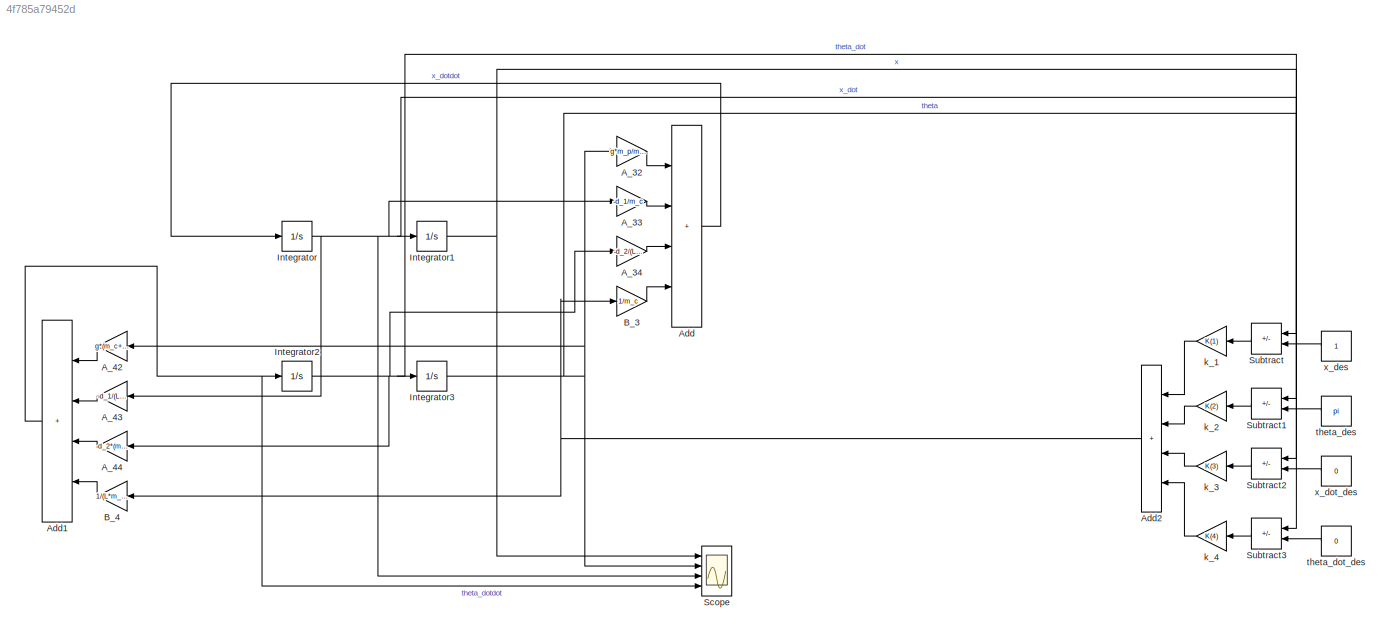
MODEL slx_4f785a79452d
KIND model
CONFIG AbsTol = auto
CONFIG EnableMultiTasking = off
CONFIG FixedStep = auto
CONFIG MaxStep = auto
CONFIG MinStep = auto
CONFIG RelTol = 1e-3
CONFIG SampleTimeConstraint = Unconstrained
CONFIG SolverName = VariableStepAuto
CONFIG StartTime = 0.0
CONFIG StopTime = 6
BLOCK [Gain] A_32
  Gain = g*m_p/m_c
BLOCK [Gain] A_33
  Gain = -d_1/m_c
BLOCK [Gain] A_34
  Gain = -d_2/(L*m_c)
BLOCK [Gain] A_42
  Gain = g*(m_c+m_p)/(m_c*L)
BLOCK [Gain] A_43
  Gain = -d_1/(L*m_c)
BLOCK [Gain] A_44
  Gain = -d_2*(m_c+m_p)/(L*L*m_c*m_p)
BLOCK [Sum] Add
  IconShape = rectangular
  Inputs = ++++
  Ports = [4, 1]
BLOCK [Sum] Add1
  IconShape = rectangular
  Inputs = ++++
  Ports = [4, 1]
BLOCK [Sum] Add2
  IconShape = rectangular
  Inputs = ++++
  Ports = [4, 1]
BLOCK [Gain] B_3
  Gain = 1/m_c
BLOCK [Gain] B_4
  Gain = 1/(L*m_c)
BLOCK [Integrator] Integrator
  InitialCondition = 1
  Ports = [1, 1]
BLOCK [Integrator] Integrator1
  InitialCondition = -1
  Ports = [1, 1]
BLOCK [Integrator] Integrator2
  Ports = [1, 1]
BLOCK [Integrator] Integrator3
  InitialCondition = pi+0.1
  Ports = [1, 1]
BLOCK [Scope] Scope
  Floating = off
  NumInputPorts = 4
  Ports = [4]
  ScopeSpecificationString = Simulink.scopes.TimeScopeBlockCfg('CurrentConfiguration', extmgr.ConfigurationSet(extmgr.Configuration('Core','General UI',true),extmgr.Configuration('Core','Source UI',true),extmgr.Configuration('Sources','WiredSimulink',true),extmgr.Configuration('Visuals','Time Domain',true,'SerializedDisplays',{struct('MinYLimReal','-31142339904539866997879520696096774568093672594581264022391383986240401027766...<+3594ch>
BLOCK [Sum] Subtract
  IconShape = rectangular
  Inputs = +-
  Ports = [2, 1]
BLOCK [Sum] Subtract1
  IconShape = rectangular
  Inputs = +-
  Ports = [2, 1]
BLOCK [Sum] Subtract2
  IconShape = rectangular
  Inputs = +-
  Ports = [2, 1]
BLOCK [Sum] Subtract3
  IconShape = rectangular
  Inputs = +-
  Ports = [2, 1]
BLOCK [Gain] k_1
  Gain = K(1)
BLOCK [Gain] k_2
  Gain = K(2)
BLOCK [Gain] k_3
  Gain = K(3)
BLOCK [Gain] k_4
  Gain = K(4)
BLOCK [Constant] theta_des
  Value = pi
BLOCK [Constant] theta_dot_des
  Value = 0
BLOCK [Constant] x_des
BLOCK [Constant] x_dot_des
  Value = 0
LINE A_32:1 -> Add:1
LINE A_33:1 -> Add:2
LINE A_34:1 -> Add:3
LINE A_42:1 -> Add1:1
LINE A_43:1 -> Add1:2
LINE A_44:1 -> Add1:3
NET Add1:1 -> Integrator2:1, Scope:4
NET Add2:1 -> B_3:1, B_4:1
LINE Add:1 -> Integrator:1
LINE B_3:1 -> Add:4
LINE B_4:1 -> Add1:4
NET Integrator1:1 -> Scope:1, Subtract:1
NET Integrator2:1 -> A_34:1, A_44:1, Integrator3:1, Subtract3:1
NET Integrator3:1 -> A_32:1, A_42:1, Scope:2, Subtract1:1
NET Integrator:1 -> A_33:1, A_43:1, Integrator1:1, Scope:3, Subtract2:1
LINE Subtract1:1 -> k_2:1
LINE Subtract2:1 -> k_3:1
LINE Subtract3:1 -> k_4:1
LINE Subtract:1 -> k_1:1
LINE k_1:1 -> Add2:1
LINE k_2:1 -> Add2:2
LINE k_3:1 -> Add2:3
LINE k_4:1 -> Add2:4
LINE theta_des:1 -> Subtract1:2
LINE theta_dot_des:1 -> Subtract3:2
LINE x_des:1 -> Subtract:2
LINE x_dot_des:1 -> Subtract2:2
note: NET lines group one-source signal fan-out (src -> all destinations, sorted); 1:1 wires keep LINE
